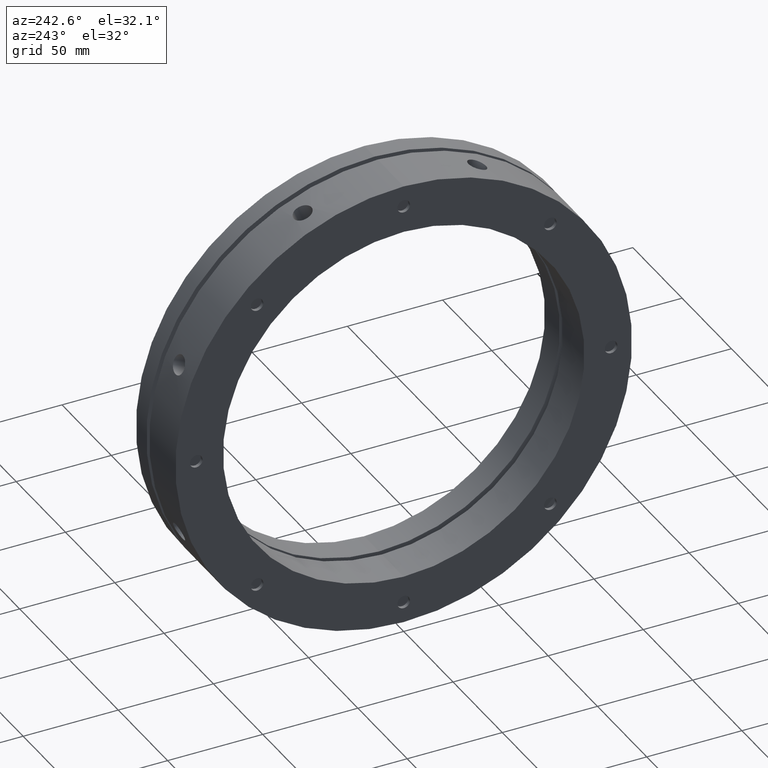
[diagram: clean part render]
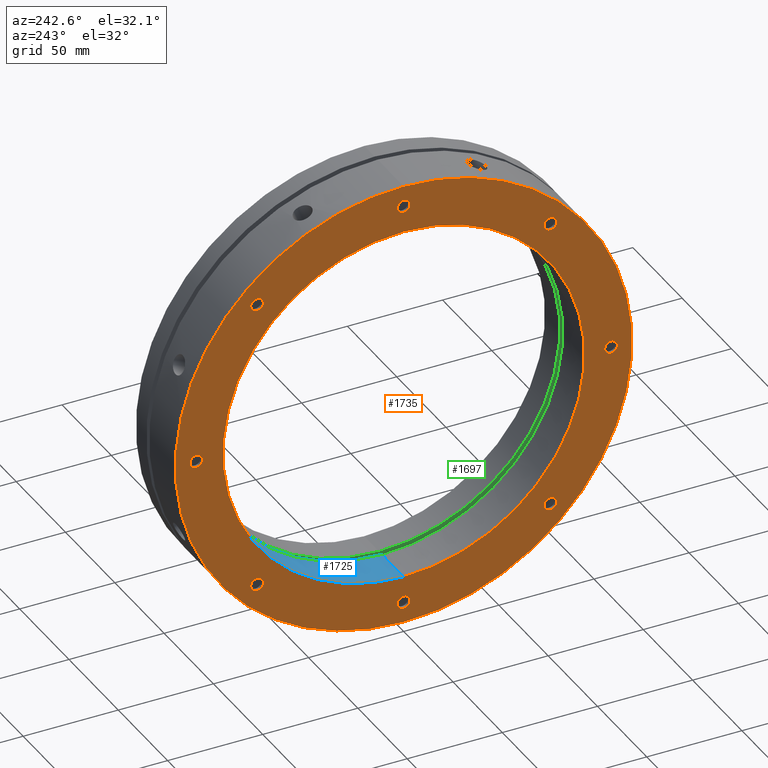
[diagram: same view with three faces highlighted in distinct colors, each labeled with its STEP entity id]
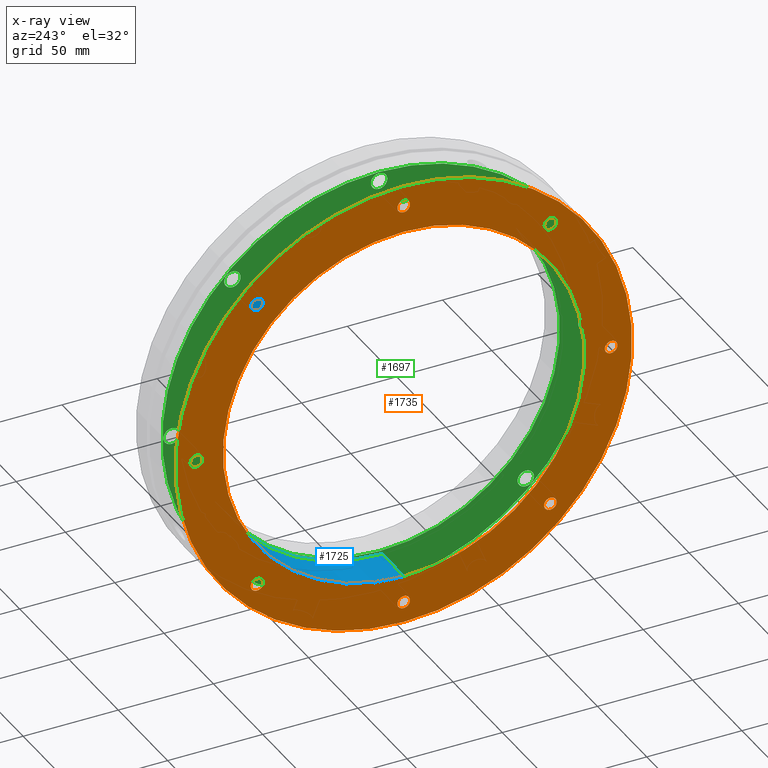
[diagram: x-ray of the same camera — body ghosted, the three highlighted faces saturated]
A machine part, auxiliary view with three faces highlighted in distinct colors.
The next image is the same camera in x-ray (body ghosted, the three faces saturated) — at least one of them is partly hidden behind the body in this view.
Their STEP definitions:

[orange] entity #1735 — the highlighted planar face has unit normal (-1, 0, 0).
#10 = DIRECTION ( 'NONE',  ( 0.0000000000000000000, 0.0000000000000000000, 1.000000000000000000 ) ) ;
#114 = EDGE_CURVE ( 'NONE', #2241, #2243, #3080, .T. ) ;
#151 = EDGE_CURVE ( 'NONE', #2280, #2273, #3122, .T. ) ;
#157 = EDGE_CURVE ( 'NONE', #2285, #2286, #3130, .T. ) ;
#161 = EDGE_CURVE ( 'NONE', #2289, #2290, #3136, .T. ) ;
#163 = EDGE_CURVE ( 'NONE', #2293, #2294, #3141, .T. ) ;
#174 = EDGE_CURVE ( 'NONE', #2301, #2302, #3159, .T. ) ;
#179 = EDGE_CURVE ( 'NONE', #2290, #2289, #3164, .T. ) ;
#187 = EDGE_CURVE ( 'NONE', #2298, #2297, #3617, .T. ) ;
#190 = EDGE_CURVE ( 'NONE', #2302, #2301, #3621, .T. ) ;
#191 = EDGE_CURVE ( 'NONE', #2273, #2280, #3623, .T. ) ;
#192 = EDGE_CURVE ( 'NONE', #2294, #2293, #3624, .T. ) ;
#196 = EDGE_CURVE ( 'NONE', #2243, #2241, #3626, .T. ) ;
#200 = EDGE_CURVE ( 'NONE', #2306, #2305, #3633, .T. ) ;
#201 = EDGE_CURVE ( 'NONE', #2314, #2313, #3630, .T. ) ;
#202 = EDGE_CURVE ( 'NONE', #2286, #2285, #3635, .T. ) ;
#208 = EDGE_CURVE ( 'NONE', #2305, #2306, #3645, .T. ) ;
#210 = EDGE_CURVE ( 'NONE', #2309, #2310, #3647, .T. ) ;
#217 = EDGE_CURVE ( 'NONE', #2313, #2314, #3655, .T. ) ;
#219 = EDGE_CURVE ( 'NONE', #2310, #2309, #3660, .T. ) ;
#234 = EDGE_CURVE ( 'NONE', #2297, #2298, #3682, .T. ) ;
#239 = DIRECTION ( 'NONE',  ( 1.000000000000000000, -0.0000000000000000000, -0.0000000000000000000 ) ) ;
#968 = CARTESIAN_POINT ( 'NONE',  ( -3.469446951953614200E-014, 0.0000000000000000000, 0.0000000000000000000 ) ) ;
#969 = DIRECTION ( 'NONE',  ( 1.000000000000000000, 0.0000000000000000000, 0.0000000000000000000 ) ) ;
#970 = DIRECTION ( 'NONE',  ( 0.0000000000000000000, 0.0000000000000000000, -1.000000000000000000 ) ) ;
#1375 = CARTESIAN_POINT ( 'NONE',  ( -2.775557561562891400E-014, 0.0000000000000000000, 0.0000000000000000000 ) ) ;
#1376 = DIRECTION ( 'NONE',  ( 1.000000000000000000, 0.0000000000000000000, 0.0000000000000000000 ) ) ;
#1377 = DIRECTION ( 'NONE',  ( 0.0000000000000000000, 0.0000000000000000000, -1.000000000000000000 ) ) ;
#1390 = CARTESIAN_POINT ( 'NONE',  ( -3.122502256758252800E-014, 0.0000000000000000000, 109.0000000000000000 ) ) ;
#1391 = DIRECTION ( 'NONE',  ( 1.000000000000000000, -0.0000000000000000000, -0.0000000000000000000 ) ) ;
#1392 = DIRECTION ( 'NONE',  ( 0.0000000000000000000, 0.0000000000000000000, 1.000000000000000000 ) ) ;
#1399 = CARTESIAN_POINT ( 'NONE',  ( -3.122502256758252800E-014, -77.07463914933369200, 77.07463914933369200 ) ) ;
#1400 = DIRECTION ( 'NONE',  ( 1.000000000000000000, -0.0000000000000000000, -0.0000000000000000000 ) ) ;
#1401 = DIRECTION ( 'NONE',  ( 0.0000000000000000000, 0.0000000000000000000, 1.000000000000000000 ) ) ;
#1404 = CARTESIAN_POINT ( 'NONE',  ( -3.122502256758252800E-014, -109.0000000000000000, 0.0000000000000000000 ) ) ;
#1405 = DIRECTION ( 'NONE',  ( 1.000000000000000000, -0.0000000000000000000, -0.0000000000000000000 ) ) ;
#1406 = DIRECTION ( 'NONE',  ( 0.0000000000000000000, 0.0000000000000000000, 1.000000000000000000 ) ) ;
#1430 = CARTESIAN_POINT ( 'NONE',  ( -3.122502256758252800E-014, -1.776356999999999900E-014, -109.0000000000000000 ) ) ;
#1431 = DIRECTION ( 'NONE',  ( 1.000000000000000000, -0.0000000000000000000, -0.0000000000000000000 ) ) ;
#1432 = DIRECTION ( 'NONE',  ( 0.0000000000000000000, 0.0000000000000000000, 1.000000000000000000 ) ) ;
#1435 = CARTESIAN_POINT ( 'NONE',  ( -3.122502256758252800E-014, -77.07463914933369200, 77.07463914933369200 ) ) ;
#1436 = DIRECTION ( 'NONE',  ( 1.000000000000000000, -0.0000000000000000000, -0.0000000000000000000 ) ) ;
#1437 = DIRECTION ( 'NONE',  ( 0.0000000000000000000, 0.0000000000000000000, 1.000000000000000000 ) ) ;
#1493 = CARTESIAN_POINT ( 'NONE',  ( -3.122502256758252800E-014, -77.07463914933369200, -77.07463914933369200 ) ) ;
#1494 = DIRECTION ( 'NONE',  ( 1.000000000000000000, -0.0000000000000000000, -0.0000000000000000000 ) ) ;
#1495 = DIRECTION ( 'NONE',  ( 0.0000000000000000000, 0.0000000000000000000, 1.000000000000000000 ) ) ;
#1497 = CARTESIAN_POINT ( 'NONE',  ( -3.122502256758252800E-014, -1.776356999999999900E-014, -109.0000000000000000 ) ) ;
#1498 = DIRECTION ( 'NONE',  ( 1.000000000000000000, -0.0000000000000000000, -0.0000000000000000000 ) ) ;
#1499 = DIRECTION ( 'NONE',  ( 0.0000000000000000000, 0.0000000000000000000, 1.000000000000000000 ) ) ;
#1501 = CARTESIAN_POINT ( 'NONE',  ( -2.775557561562891400E-014, 0.0000000000000000000, 0.0000000000000000000 ) ) ;
#1502 = DIRECTION ( 'NONE',  ( 1.000000000000000000, 0.0000000000000000000, 0.0000000000000000000 ) ) ;
#1503 = DIRECTION ( 'NONE',  ( 0.0000000000000000000, 0.0000000000000000000, -1.000000000000000000 ) ) ;
#1505 = CARTESIAN_POINT ( 'NONE',  ( -3.122502256758252800E-014, -109.0000000000000000, 0.0000000000000000000 ) ) ;
#1506 = DIRECTION ( 'NONE',  ( 1.000000000000000000, -0.0000000000000000000, -0.0000000000000000000 ) ) ;
#1507 = DIRECTION ( 'NONE',  ( 0.0000000000000000000, 0.0000000000000000000, 1.000000000000000000 ) ) ;
#1551 = CARTESIAN_POINT ( 'NONE',  ( -3.469446951953614200E-014, 0.0000000000000000000, 0.0000000000000000000 ) ) ;
#1552 = DIRECTION ( 'NONE',  ( 1.000000000000000000, 0.0000000000000000000, 0.0000000000000000000 ) ) ;
#1553 = DIRECTION ( 'NONE',  ( 0.0000000000000000000, 0.0000000000000000000, -1.000000000000000000 ) ) ;
#1560 = CARTESIAN_POINT ( 'NONE',  ( -3.122502256758252800E-014, 77.07463914933369200, -77.07463914933369200 ) ) ;
#1561 = DIRECTION ( 'NONE',  ( 1.000000000000000000, -0.0000000000000000000, -0.0000000000000000000 ) ) ;
#1562 = DIRECTION ( 'NONE',  ( 0.0000000000000000000, 0.0000000000000000000, 1.000000000000000000 ) ) ;
#1564 = CARTESIAN_POINT ( 'NONE',  ( -3.122502256758252800E-014, 77.07463914933370600, 77.07463914933367700 ) ) ;
#1565 = DIRECTION ( 'NONE',  ( 1.000000000000000000, -0.0000000000000000000, -0.0000000000000000000 ) ) ;
#1566 = DIRECTION ( 'NONE',  ( 0.0000000000000000000, 0.0000000000000000000, 1.000000000000000000 ) ) ;
#1568 = CARTESIAN_POINT ( 'NONE',  ( -3.122502256758252800E-014, 0.0000000000000000000, 109.0000000000000000 ) ) ;
#1569 = DIRECTION ( 'NONE',  ( 1.000000000000000000, -0.0000000000000000000, -0.0000000000000000000 ) ) ;
#1570 = DIRECTION ( 'NONE',  ( 0.0000000000000000000, 0.0000000000000000000, 1.000000000000000000 ) ) ;
#1582 = CARTESIAN_POINT ( 'NONE',  ( -3.122502256758252800E-014, 77.07463914933369200, -77.07463914933369200 ) ) ;
#1735 = ADVANCED_FACE ( 'NONE', ( #4041, #4049, #4045, #4043, #4047, #4050, #4051, #4052, #4053, #4054 ), #4802, .T. ) ;
#2241 = VERTEX_POINT ( 'NONE', #4855 ) ;
#2243 = VERTEX_POINT ( 'NONE', #4863 ) ;
#2273 = VERTEX_POINT ( 'NONE', #4893 ) ;
#2280 = VERTEX_POINT ( 'NONE', #4900 ) ;
#2285 = VERTEX_POINT ( 'NONE', #4905 ) ;
#2286 = VERTEX_POINT ( 'NONE', #4906 ) ;
#2289 = VERTEX_POINT ( 'NONE', #4909 ) ;
#2290 = VERTEX_POINT ( 'NONE', #4910 ) ;
#2293 = VERTEX_POINT ( 'NONE', #4913 ) ;
#2294 = VERTEX_POINT ( 'NONE', #4914 ) ;
#2297 = VERTEX_POINT ( 'NONE', #4917 ) ;
#2298 = VERTEX_POINT ( 'NONE', #4918 ) ;
#2301 = VERTEX_POINT ( 'NONE', #4921 ) ;
#2302 = VERTEX_POINT ( 'NONE', #4922 ) ;
#2305 = VERTEX_POINT ( 'NONE', #4925 ) ;
#2306 = VERTEX_POINT ( 'NONE', #4926 ) ;
#2309 = VERTEX_POINT ( 'NONE', #4929 ) ;
#2310 = VERTEX_POINT ( 'NONE', #4930 ) ;
#2313 = VERTEX_POINT ( 'NONE', #4933 ) ;
#2314 = VERTEX_POINT ( 'NONE', #4934 ) ;
#2519 = AXIS2_PLACEMENT_3D ( 'NONE', #4803, #4800, #4805 ) ;
#2793 = EDGE_LOOP ( 'NONE', ( #2927, #2926 ) ) ;
#2795 = EDGE_LOOP ( 'NONE', ( #2925, #2931 ) ) ;
#2796 = EDGE_LOOP ( 'NONE', ( #2922, #2924 ) ) ;
#2797 = EDGE_LOOP ( 'NONE', ( #2921, #2920 ) ) ;
#2801 = EDGE_LOOP ( 'NONE', ( #2919, #2923 ) ) ;
#2802 = EDGE_LOOP ( 'NONE', ( #2932, #2827 ) ) ;
#2803 = EDGE_LOOP ( 'NONE', ( #2828, #2829 ) ) ;
#2804 = EDGE_LOOP ( 'NONE', ( #2830, #2831 ) ) ;
#2805 = EDGE_LOOP ( 'NONE', ( #2832, #2833 ) ) ;
#2806 = EDGE_LOOP ( 'NONE', ( #2834, #2835 ) ) ;
#2827 = ORIENTED_EDGE ( 'NONE', *, *, #190, .T. ) ;
#2828 = ORIENTED_EDGE ( 'NONE', *, *, #208, .T. ) ;
#2829 = ORIENTED_EDGE ( 'NONE', *, *, #200, .T. ) ;
#2830 = ORIENTED_EDGE ( 'NONE', *, *, #210, .T. ) ;
#2831 = ORIENTED_EDGE ( 'NONE', *, *, #219, .T. ) ;
#2832 = ORIENTED_EDGE ( 'NONE', *, *, #217, .T. ) ;
#2833 = ORIENTED_EDGE ( 'NONE', *, *, #201, .T. ) ;
#2834 = ORIENTED_EDGE ( 'NONE', *, *, #114, .F. ) ;
#2835 = ORIENTED_EDGE ( 'NONE', *, *, #196, .F. ) ;
#2919 = ORIENTED_EDGE ( 'NONE', *, *, #191, .T. ) ;
#2920 = ORIENTED_EDGE ( 'NONE', *, *, #179, .T. ) ;
#2921 = ORIENTED_EDGE ( 'NONE', *, *, #161, .T. ) ;
#2922 = ORIENTED_EDGE ( 'NONE', *, *, #157, .T. ) ;
#2923 = ORIENTED_EDGE ( 'NONE', *, *, #151, .T. ) ;
#2924 = ORIENTED_EDGE ( 'NONE', *, *, #202, .T. ) ;
#2925 = ORIENTED_EDGE ( 'NONE', *, *, #163, .T. ) ;
#2926 = ORIENTED_EDGE ( 'NONE', *, *, #187, .T. ) ;
#2927 = ORIENTED_EDGE ( 'NONE', *, *, #234, .T. ) ;
#2931 = ORIENTED_EDGE ( 'NONE', *, *, #192, .T. ) ;
#2932 = ORIENTED_EDGE ( 'NONE', *, *, #174, .T. ) ;
#3080 = CIRCLE ( 'NONE', #3354, 120.0000000000000000 ) ;
#3122 = CIRCLE ( 'NONE', #3344, 95.00000000000000000 ) ;
#3130 = CIRCLE ( 'NONE', #3341, 3.323499999999993000 ) ;
#3136 = CIRCLE ( 'NONE', #3339, 3.323499999999993000 ) ;
#3141 = CIRCLE ( 'NONE', #3338, 3.323500000000000100 ) ;
#3159 = CIRCLE ( 'NONE', #3335, 3.323499999999993000 ) ;
#3164 = CIRCLE ( 'NONE', #3334, 3.323499999999993000 ) ;
#3307 = AXIS2_PLACEMENT_3D ( 'NONE', #4321, #4322, #4323 ) ;
#3310 = AXIS2_PLACEMENT_3D ( 'NONE', #4216, #4217, #4218 ) ;
#3312 = AXIS2_PLACEMENT_3D ( 'NONE', #4208, #4209, #4210 ) ;
#3316 = AXIS2_PLACEMENT_3D ( 'NONE', #4195, #4196, #4197 ) ;
#3318 = AXIS2_PLACEMENT_3D ( 'NONE', #1582, #239, #10 ) ;
#3321 = AXIS2_PLACEMENT_3D ( 'NONE', #1568, #1569, #1570 ) ;
#3322 = AXIS2_PLACEMENT_3D ( 'NONE', #1564, #1565, #1566 ) ;
#3323 = AXIS2_PLACEMENT_3D ( 'NONE', #1560, #1561, #1562 ) ;
#3325 = AXIS2_PLACEMENT_3D ( 'NONE', #1551, #1552, #1553 ) ;
#3327 = AXIS2_PLACEMENT_3D ( 'NONE', #1505, #1506, #1507 ) ;
#3328 = AXIS2_PLACEMENT_3D ( 'NONE', #1501, #1502, #1503 ) ;
#3329 = AXIS2_PLACEMENT_3D ( 'NONE', #1497, #1498, #1499 ) ;
#3330 = AXIS2_PLACEMENT_3D ( 'NONE', #1493, #1494, #1495 ) ;
#3334 = AXIS2_PLACEMENT_3D ( 'NONE', #1435, #1436, #1437 ) ;
#3335 = AXIS2_PLACEMENT_3D ( 'NONE', #1430, #1431, #1432 ) ;
#3338 = AXIS2_PLACEMENT_3D ( 'NONE', #1404, #1405, #1406 ) ;
#3339 = AXIS2_PLACEMENT_3D ( 'NONE', #1399, #1400, #1401 ) ;
#3341 = AXIS2_PLACEMENT_3D ( 'NONE', #1390, #1391, #1392 ) ;
#3344 = AXIS2_PLACEMENT_3D ( 'NONE', #1375, #1376, #1377 ) ;
#3354 = AXIS2_PLACEMENT_3D ( 'NONE', #968, #969, #970 ) ;
#3617 = CIRCLE ( 'NONE', #3330, 3.323500000000007200 ) ;
#3621 = CIRCLE ( 'NONE', #3329, 3.323499999999993000 ) ;
#3623 = CIRCLE ( 'NONE', #3328, 95.00000000000000000 ) ;
#3624 = CIRCLE ( 'NONE', #3327, 3.323500000000000100 ) ;
#3626 = CIRCLE ( 'NONE', #3325, 120.0000000000000000 ) ;
#3630 = CIRCLE ( 'NONE', #3322, 3.323499999999993000 ) ;
#3633 = CIRCLE ( 'NONE', #3323, 3.323499999999993000 ) ;
#3635 = CIRCLE ( 'NONE', #3321, 3.323499999999993000 ) ;
#3645 = CIRCLE ( 'NONE', #3318, 3.323499999999993000 ) ;
#3647 = CIRCLE ( 'NONE', #3316, 3.323500000000000100 ) ;
#3655 = CIRCLE ( 'NONE', #3312, 3.323499999999993000 ) ;
#3660 = CIRCLE ( 'NONE', #3310, 3.323500000000000100 ) ;
#3682 = CIRCLE ( 'NONE', #3307, 3.323500000000007200 ) ;
#4041 = FACE_BOUND ( 'NONE', #2801, .T. ) ;
#4043 = FACE_BOUND ( 'NONE', #2795, .T. ) ;
#4045 = FACE_BOUND ( 'NONE', #2797, .T. ) ;
#4047 = FACE_BOUND ( 'NONE', #2793, .T. ) ;
#4049 = FACE_BOUND ( 'NONE', #2796, .T. ) ;
#4050 = FACE_BOUND ( 'NONE', #2802, .T. ) ;
#4051 = FACE_BOUND ( 'NONE', #2803, .T. ) ;
#4052 = FACE_BOUND ( 'NONE', #2804, .T. ) ;
#4053 = FACE_BOUND ( 'NONE', #2805, .T. ) ;
#4054 = FACE_OUTER_BOUND ( 'NONE', #2806, .T. ) ;
#4195 = CARTESIAN_POINT ( 'NONE',  ( -3.122502256758252800E-014, 109.0000000000000000, -1.776356999999999900E-014 ) ) ;
#4196 = DIRECTION ( 'NONE',  ( 1.000000000000000000, -0.0000000000000000000, -0.0000000000000000000 ) ) ;
#4197 = DIRECTION ( 'NONE',  ( 0.0000000000000000000, 0.0000000000000000000, 1.000000000000000000 ) ) ;
#4208 = CARTESIAN_POINT ( 'NONE',  ( -3.122502256758252800E-014, 77.07463914933370600, 77.07463914933367700 ) ) ;
#4209 = DIRECTION ( 'NONE',  ( 1.000000000000000000, -0.0000000000000000000, -0.0000000000000000000 ) ) ;
#4210 = DIRECTION ( 'NONE',  ( 0.0000000000000000000, 0.0000000000000000000, 1.000000000000000000 ) ) ;
#4216 = CARTESIAN_POINT ( 'NONE',  ( -3.122502256758252800E-014, 109.0000000000000000, -1.776356999999999900E-014 ) ) ;
#4217 = DIRECTION ( 'NONE',  ( 1.000000000000000000, -0.0000000000000000000, -0.0000000000000000000 ) ) ;
#4218 = DIRECTION ( 'NONE',  ( 0.0000000000000000000, 0.0000000000000000000, 1.000000000000000000 ) ) ;
#4321 = CARTESIAN_POINT ( 'NONE',  ( -3.122502256758252800E-014, -77.07463914933369200, -77.07463914933369200 ) ) ;
#4322 = DIRECTION ( 'NONE',  ( 1.000000000000000000, -0.0000000000000000000, -0.0000000000000000000 ) ) ;
#4323 = DIRECTION ( 'NONE',  ( 0.0000000000000000000, 0.0000000000000000000, 1.000000000000000000 ) ) ;
#4800 = DIRECTION ( 'NONE',  ( -1.000000000000000000, 0.0000000000000000000, 0.0000000000000000000 ) ) ;
#4802 = PLANE ( 'NONE',  #2519 ) ;
#4803 = CARTESIAN_POINT ( 'NONE',  ( -3.185942000000000000E-014, 107.5000000000000000, 0.0000000000000000000 ) ) ;
#4805 = DIRECTION ( 'NONE',  ( 0.0000000000000000000, 0.0000000000000000000, 1.000000000000000000 ) ) ;
#4855 = CARTESIAN_POINT ( 'NONE',  ( -3.469446951953614200E-014, 0.0000000000000000000, -120.0000000000000000 ) ) ;
#4863 = CARTESIAN_POINT ( 'NONE',  ( -3.469446951953614200E-014, 1.469576158976823700E-014, 120.0000000000000000 ) ) ;
#4893 = CARTESIAN_POINT ( 'NONE',  ( -2.775557561562891400E-014, 0.0000000000000000000, -95.00000000000000000 ) ) ;
#4900 = CARTESIAN_POINT ( 'NONE',  ( -2.775557561562891400E-014, 1.163414459189985600E-014, 95.00000000000000000 ) ) ;
#4905 = CARTESIAN_POINT ( 'NONE',  ( -3.122502256758252800E-014, 0.0000000000000000000, 112.3235000000000000 ) ) ;
#4906 = CARTESIAN_POINT ( 'NONE',  ( -3.122502256758252800E-014, 4.070113636966236800E-016, 105.6765000000000000 ) ) ;
#4909 = CARTESIAN_POINT ( 'NONE',  ( -3.122502256758252800E-014, -77.07463914933369200, 80.39813914933368700 ) ) ;
#4910 = CARTESIAN_POINT ( 'NONE',  ( -3.122502256758252800E-014, -77.07463914933369200, 73.75113914933371000 ) ) ;
#4913 = CARTESIAN_POINT ( 'NONE',  ( -3.122502256758252800E-014, -109.0000000000000000, 3.323500000000000100 ) ) ;
#4914 = CARTESIAN_POINT ( 'NONE',  ( -3.122502256758252800E-014, -109.0000000000000000, -3.323500000000000100 ) ) ;
#4917 = CARTESIAN_POINT ( 'NONE',  ( -3.122502256758252800E-014, -77.07463914933369200, -73.75113914933368200 ) ) ;
#4918 = CARTESIAN_POINT ( 'NONE',  ( -3.122502256758252800E-014, -77.07463914933369200, -80.39813914933368700 ) ) ;
#4921 = CARTESIAN_POINT ( 'NONE',  ( -3.122502256758252800E-014, -1.776356999999999900E-014, -105.6765000000000000 ) ) ;
#4922 = CARTESIAN_POINT ( 'NONE',  ( -3.122502256758252800E-014, -1.735655863630337500E-014, -112.3235000000000000 ) ) ;
#4925 = CARTESIAN_POINT ( 'NONE',  ( -3.122502256758252800E-014, 77.07463914933369200, -73.75113914933371000 ) ) ;
#4926 = CARTESIAN_POINT ( 'NONE',  ( -3.122502256758252800E-014, 77.07463914933369200, -80.39813914933368700 ) ) ;
#4929 = CARTESIAN_POINT ( 'NONE',  ( -3.122502256758252800E-014, 109.0000000000000000, 3.323499999999982400 ) ) ;
#4930 = CARTESIAN_POINT ( 'NONE',  ( -3.122502256758252800E-014, 109.0000000000000000, -3.323500000000017900 ) ) ;
#4933 = CARTESIAN_POINT ( 'NONE',  ( -3.122502256758252800E-014, 77.07463914933370600, 80.39813914933365900 ) ) ;
#4934 = CARTESIAN_POINT ( 'NONE',  ( -3.122502256758252800E-014, 77.07463914933370600, 73.75113914933368200 ) ) ;

[blue] entity #1725 — the highlighted cylindrical surface (partial cylindrical patch) has radius 95 mm, axis along (1, 0, 0).
#12 = EDGE_CURVE ( 'NONE', #2282, #2281, #2933, .T. ) ;
#152 = EDGE_CURVE ( 'NONE', #2280, #2282, #3124, .T. ) ;
#154 = EDGE_CURVE ( 'NONE', #2273, #2281, #3129, .T. ) ;
#191 = EDGE_CURVE ( 'NONE', #2273, #2280, #3623, .T. ) ;
#599 = CARTESIAN_POINT ( 'NONE',  ( 21.99999999999996400, 0.0000000000000000000, 0.0000000000000000000 ) ) ;
#600 = DIRECTION ( 'NONE',  ( -1.000000000000000000, -0.0000000000000000000, -0.0000000000000000000 ) ) ;
#601 = DIRECTION ( 'NONE',  ( 0.0000000000000000000, 0.0000000000000000000, -1.000000000000000000 ) ) ;
#1372 = DIRECTION ( 'NONE',  ( 1.000000000000000000, 0.0000000000000000000, 0.0000000000000000000 ) ) ;
#1373 = DIRECTION ( 'NONE',  ( 1.000000000000000000, 0.0000000000000000000, 0.0000000000000000000 ) ) ;
#1374 = CARTESIAN_POINT ( 'NONE',  ( 19.99999999999997500, 1.163414459189985600E-014, 95.00000000000000000 ) ) ;
#1378 = CARTESIAN_POINT ( 'NONE',  ( 19.99999999999997500, 0.0000000000000000000, -95.00000000000000000 ) ) ;
#1501 = CARTESIAN_POINT ( 'NONE',  ( -2.775557561562891400E-014, 0.0000000000000000000, 0.0000000000000000000 ) ) ;
#1502 = DIRECTION ( 'NONE',  ( 1.000000000000000000, 0.0000000000000000000, 0.0000000000000000000 ) ) ;
#1503 = DIRECTION ( 'NONE',  ( 0.0000000000000000000, 0.0000000000000000000, -1.000000000000000000 ) ) ;
#1725 = ADVANCED_FACE ( 'NONE', ( #4013 ), #4022, .F. ) ;
#2189 = ORIENTED_EDGE ( 'NONE', *, *, #152, .F. ) ;
#2190 = ORIENTED_EDGE ( 'NONE', *, *, #191, .F. ) ;
#2191 = ORIENTED_EDGE ( 'NONE', *, *, #154, .T. ) ;
#2192 = ORIENTED_EDGE ( 'NONE', *, *, #12, .F. ) ;
#2273 = VERTEX_POINT ( 'NONE', #4893 ) ;
#2280 = VERTEX_POINT ( 'NONE', #4900 ) ;
#2281 = VERTEX_POINT ( 'NONE', #4901 ) ;
#2282 = VERTEX_POINT ( 'NONE', #4902 ) ;
#2405 = AXIS2_PLACEMENT_3D ( 'NONE', #4773, #4771, #4769 ) ;
#2782 = EDGE_LOOP ( 'NONE', ( #2189, #2190, #2191, #2192 ) ) ;
#2933 = CIRCLE ( 'NONE', #3410, 95.00000000000000000 ) ;
#3124 = LINE ( 'NONE', #1374, #3128 ) ;
#3128 = VECTOR ( 'NONE', #1372, 1000.000000000000000 ) ;
#3129 = LINE ( 'NONE', #1378, #3131 ) ;
#3131 = VECTOR ( 'NONE', #1373, 1000.000000000000000 ) ;
#3328 = AXIS2_PLACEMENT_3D ( 'NONE', #1501, #1502, #1503 ) ;
#3410 = AXIS2_PLACEMENT_3D ( 'NONE', #599, #600, #601 ) ;
#3623 = CIRCLE ( 'NONE', #3328, 95.00000000000000000 ) ;
#4013 = FACE_OUTER_BOUND ( 'NONE', #2782, .T. ) ;
#4022 = CYLINDRICAL_SURFACE ( 'NONE', #2405, 95.00000000000000000 ) ;
#4769 = DIRECTION ( 'NONE',  ( 0.0000000000000000000, 0.0000000000000000000, -1.000000000000000000 ) ) ;
#4771 = DIRECTION ( 'NONE',  ( 1.000000000000000000, 0.0000000000000000000, 0.0000000000000000000 ) ) ;
#4773 = CARTESIAN_POINT ( 'NONE',  ( 19.99999999999997500, 0.0000000000000000000, 0.0000000000000000000 ) ) ;
#4893 = CARTESIAN_POINT ( 'NONE',  ( -2.775557561562891400E-014, 0.0000000000000000000, -95.00000000000000000 ) ) ;
#4900 = CARTESIAN_POINT ( 'NONE',  ( -2.775557561562891400E-014, 1.163414459189985600E-014, 95.00000000000000000 ) ) ;
#4901 = CARTESIAN_POINT ( 'NONE',  ( 21.99999999999996400, 0.0000000000000000000, -95.00000000000000000 ) ) ;
#4902 = CARTESIAN_POINT ( 'NONE',  ( 21.99999999999996400, 1.163414459189985600E-014, 95.00000000000000000 ) ) ;

[green] entity #1697 — the highlighted planar face has unit normal (1, 0, 0).
#68 = EDGE_CURVE ( 'NONE', #2591, #2592, #3008, .T. ) ;
#72 = EDGE_CURVE ( 'NONE', #2595, #2596, #3014, .T. ) ;
#76 = EDGE_CURVE ( 'NONE', #2599, #2600, #3020, .T. ) ;
#80 = EDGE_CURVE ( 'NONE', #2603, #2604, #3026, .T. ) ;
#84 = EDGE_CURVE ( 'NONE', #2607, #2608, #3032, .T. ) ;
#93 = EDGE_CURVE ( 'NONE', #2328, #2329, #3046, .T. ) ;
#94 = EDGE_CURVE ( 'NONE', #2316, #2325, #3041, .T. ) ;
#393 = EDGE_LOOP ( 'NONE', ( #2041, #2042 ) ) ;
#409 = EDGE_LOOP ( 'NONE', ( #2037, #2038 ) ) ;
#410 = EDGE_LOOP ( 'NONE', ( #2045, #2046 ) ) ;
#420 = EDGE_LOOP ( 'NONE', ( #2039, #2040 ) ) ;
#421 = EDGE_LOOP ( 'NONE', ( #2043, #2044 ) ) ;
#422 = EDGE_LOOP ( 'NONE', ( #2047, #2048 ) ) ;
#423 = EDGE_LOOP ( 'NONE', ( #2051, #2052 ) ) ;
#751 = CARTESIAN_POINT ( 'NONE',  ( 24.99999999999997500, -1.776356999999999900E-014, -109.0000000000000000 ) ) ;
#752 = DIRECTION ( 'NONE',  ( 1.000000000000000000, 0.0000000000000000000, 0.0000000000000000000 ) ) ;
#753 = DIRECTION ( 'NONE',  ( 0.0000000000000000000, 0.0000000000000000000, -1.000000000000000000 ) ) ;
#761 = CARTESIAN_POINT ( 'NONE',  ( 24.99999999999997500, 77.07463914933369200, -77.07463914933369200 ) ) ;
#762 = DIRECTION ( 'NONE',  ( 1.000000000000000000, 0.0000000000000000000, 0.0000000000000000000 ) ) ;
#763 = DIRECTION ( 'NONE',  ( 0.0000000000000000000, 0.0000000000000000000, -1.000000000000000000 ) ) ;
#771 = CARTESIAN_POINT ( 'NONE',  ( 24.99999999999997500, 109.0000000000000000, -1.776356999999999900E-014 ) ) ;
#772 = DIRECTION ( 'NONE',  ( 1.000000000000000000, 0.0000000000000000000, 0.0000000000000000000 ) ) ;
#773 = DIRECTION ( 'NONE',  ( 0.0000000000000000000, 0.0000000000000000000, -1.000000000000000000 ) ) ;
#781 = CARTESIAN_POINT ( 'NONE',  ( 24.99999999999997500, 77.07463914933370600, 77.07463914933367700 ) ) ;
#782 = DIRECTION ( 'NONE',  ( 1.000000000000000000, 0.0000000000000000000, 0.0000000000000000000 ) ) ;
#783 = DIRECTION ( 'NONE',  ( 0.0000000000000000000, 0.0000000000000000000, -1.000000000000000000 ) ) ;
#792 = CARTESIAN_POINT ( 'NONE',  ( 24.99999999999995700, 0.0000000000000000000, 0.0000000000000000000 ) ) ;
#793 = DIRECTION ( 'NONE',  ( 1.000000000000000000, -0.0000000000000000000, -0.0000000000000000000 ) ) ;
#794 = DIRECTION ( 'NONE',  ( 0.0000000000000000000, 0.0000000000000000000, 1.000000000000000000 ) ) ;
#811 = CARTESIAN_POINT ( 'NONE',  ( 24.99999999999997500, -77.07463914933369200, 77.07463914933369200 ) ) ;
#812 = DIRECTION ( 'NONE',  ( 1.000000000000000000, 0.0000000000000000000, 0.0000000000000000000 ) ) ;
#813 = DIRECTION ( 'NONE',  ( 0.0000000000000000000, 0.0000000000000000000, -1.000000000000000000 ) ) ;
#815 = CARTESIAN_POINT ( 'NONE',  ( 24.99999999999997500, 0.0000000000000000000, 109.0000000000000000 ) ) ;
#816 = DIRECTION ( 'NONE',  ( 1.000000000000000000, 0.0000000000000000000, 0.0000000000000000000 ) ) ;
#817 = DIRECTION ( 'NONE',  ( 0.0000000000000000000, 0.0000000000000000000, -1.000000000000000000 ) ) ;
#1697 = ADVANCED_FACE ( 'NONE', ( #3933, #3941, #3937, #3935, #3939, #3942, #3943, #3944, #3945, #3946 ), #4684, .F. ) ;
#2037 = ORIENTED_EDGE ( 'NONE', *, *, #3402, .F. ) ;
#2038 = ORIENTED_EDGE ( 'NONE', *, *, #3537, .F. ) ;
#2039 = ORIENTED_EDGE ( 'NONE', *, *, #3557, .T. ) ;
#2040 = ORIENTED_EDGE ( 'NONE', *, *, #94, .T. ) ;
#2041 = ORIENTED_EDGE ( 'NONE', *, *, #3558, .T. ) ;
#2042 = ORIENTED_EDGE ( 'NONE', *, *, #93, .T. ) ;
#2043 = ORIENTED_EDGE ( 'NONE', *, *, #3559, .T. ) ;
#2044 = ORIENTED_EDGE ( 'NONE', *, *, #3508, .T. ) ;
#2045 = ORIENTED_EDGE ( 'NONE', *, *, #3562, .T. ) ;
#2046 = ORIENTED_EDGE ( 'NONE', *, *, #3392, .T. ) ;
#2047 = ORIENTED_EDGE ( 'NONE', *, *, #3563, .T. ) ;
#2048 = ORIENTED_EDGE ( 'NONE', *, *, #68, .T. ) ;
#2049 = ORIENTED_EDGE ( 'NONE', *, *, #3564, .T. ) ;
#2050 = ORIENTED_EDGE ( 'NONE', *, *, #72, .T. ) ;
#2051 = ORIENTED_EDGE ( 'NONE', *, *, #3565, .T. ) ;
#2052 = ORIENTED_EDGE ( 'NONE', *, *, #76, .T. ) ;
#2053 = ORIENTED_EDGE ( 'NONE', *, *, #3566, .T. ) ;
#2054 = ORIENTED_EDGE ( 'NONE', *, *, #80, .T. ) ;
#2055 = ORIENTED_EDGE ( 'NONE', *, *, #84, .F. ) ;
#2056 = ORIENTED_EDGE ( 'NONE', *, *, #3555, .F. ) ;
#2316 = VERTEX_POINT ( 'NONE', #4936 ) ;
#2325 = VERTEX_POINT ( 'NONE', #4945 ) ;
#2328 = VERTEX_POINT ( 'NONE', #4948 ) ;
#2329 = VERTEX_POINT ( 'NONE', #4949 ) ;
#2332 = VERTEX_POINT ( 'NONE', #4952 ) ;
#2333 = VERTEX_POINT ( 'NONE', #4953 ) ;
#2442 = AXIS2_PLACEMENT_3D ( 'NONE', #5532, #5533, #5534 ) ;
#2443 = AXIS2_PLACEMENT_3D ( 'NONE', #5529, #5530, #5531 ) ;
#2444 = AXIS2_PLACEMENT_3D ( 'NONE', #5525, #5526, #5527 ) ;
#2445 = AXIS2_PLACEMENT_3D ( 'NONE', #5522, #5523, #5524 ) ;
#2446 = AXIS2_PLACEMENT_3D ( 'NONE', #5519, #5520, #5521 ) ;
#2448 = AXIS2_PLACEMENT_3D ( 'NONE', #5513, #5514, #5515 ) ;
#2449 = AXIS2_PLACEMENT_3D ( 'NONE', #5510, #5511, #5512 ) ;
#2450 = AXIS2_PLACEMENT_3D ( 'NONE', #5505, #5506, #5507 ) ;
#2452 = AXIS2_PLACEMENT_3D ( 'NONE', #5499, #5500, #5501 ) ;
#2466 = AXIS2_PLACEMENT_3D ( 'NONE', #5452, #5453, #5454 ) ;
#2495 = AXIS2_PLACEMENT_3D ( 'NONE', #5366, #5367, #5368 ) ;
#2539 = AXIS2_PLACEMENT_3D ( 'NONE', #5203, #5204, #5205 ) ;
#2543 = AXIS2_PLACEMENT_3D ( 'NONE', #5182, #5183, #5184 ) ;
#2587 = VERTEX_POINT ( 'NONE', #4958 ) ;
#2588 = VERTEX_POINT ( 'NONE', #4959 ) ;
#2591 = VERTEX_POINT ( 'NONE', #4955 ) ;
#2592 = VERTEX_POINT ( 'NONE', #4962 ) ;
#2595 = VERTEX_POINT ( 'NONE', #4964 ) ;
#2596 = VERTEX_POINT ( 'NONE', #4965 ) ;
#2599 = VERTEX_POINT ( 'NONE', #4968 ) ;
#2600 = VERTEX_POINT ( 'NONE', #4969 ) ;
#2603 = VERTEX_POINT ( 'NONE', #4972 ) ;
#2604 = VERTEX_POINT ( 'NONE', #4973 ) ;
#2607 = VERTEX_POINT ( 'NONE', #4976 ) ;
#2608 = VERTEX_POINT ( 'NONE', #4977 ) ;
#2647 = VERTEX_POINT ( 'NONE', #5016 ) ;
#2648 = VERTEX_POINT ( 'NONE', #5017 ) ;
#2910 = EDGE_LOOP ( 'NONE', ( #2053, #2054 ) ) ;
#2913 = EDGE_LOOP ( 'NONE', ( #2055, #2056 ) ) ;
#2914 = EDGE_LOOP ( 'NONE', ( #2049, #2050 ) ) ;
#3008 = CIRCLE ( 'NONE', #3450, 4.299999999999998000 ) ;
#3014 = CIRCLE ( 'NONE', #3314, 4.299999999999998000 ) ;
#3020 = CIRCLE ( 'NONE', #3452, 4.299999999999999800 ) ;
#3026 = CIRCLE ( 'NONE', #3448, 4.299999999999998000 ) ;
#3032 = CIRCLE ( 'NONE', #3362, 114.0000000000000000 ) ;
#3041 = CIRCLE ( 'NONE', #3357, 4.299999999999998000 ) ;
#3046 = CIRCLE ( 'NONE', #3358, 4.299999999999998000 ) ;
#3314 = AXIS2_PLACEMENT_3D ( 'NONE', #761, #762, #763 ) ;
#3357 = AXIS2_PLACEMENT_3D ( 'NONE', #815, #816, #817 ) ;
#3358 = AXIS2_PLACEMENT_3D ( 'NONE', #811, #812, #813 ) ;
#3362 = AXIS2_PLACEMENT_3D ( 'NONE', #792, #793, #794 ) ;
#3392 = EDGE_CURVE ( 'NONE', #2587, #2588, #4125, .T. ) ;
#3402 = EDGE_CURVE ( 'NONE', #2647, #2648, #4142, .T. ) ;
#3448 = AXIS2_PLACEMENT_3D ( 'NONE', #781, #782, #783 ) ;
#3450 = AXIS2_PLACEMENT_3D ( 'NONE', #751, #752, #753 ) ;
#3452 = AXIS2_PLACEMENT_3D ( 'NONE', #771, #772, #773 ) ;
#3508 = EDGE_CURVE ( 'NONE', #2332, #2333, #5730, .T. ) ;
#3537 = EDGE_CURVE ( 'NONE', #2648, #2647, #5763, .T. ) ;
#3555 = EDGE_CURVE ( 'NONE', #2608, #2607, #5785, .T. ) ;
#3557 = EDGE_CURVE ( 'NONE', #2325, #2316, #5787, .T. ) ;
#3558 = EDGE_CURVE ( 'NONE', #2329, #2328, #5788, .T. ) ;
#3559 = EDGE_CURVE ( 'NONE', #2333, #2332, #5789, .T. ) ;
#3562 = EDGE_CURVE ( 'NONE', #2588, #2587, #5793, .T. ) ;
#3563 = EDGE_CURVE ( 'NONE', #2592, #2591, #5794, .T. ) ;
#3564 = EDGE_CURVE ( 'NONE', #2596, #2595, #5795, .T. ) ;
#3565 = EDGE_CURVE ( 'NONE', #2600, #2599, #5796, .T. ) ;
#3566 = EDGE_CURVE ( 'NONE', #2604, #2603, #5797, .T. ) ;
#3587 = AXIS2_PLACEMENT_3D ( 'NONE', #4686, #4682, #4688 ) ;
#3933 = FACE_BOUND ( 'NONE', #409, .T. ) ;
#3935 = FACE_BOUND ( 'NONE', #421, .T. ) ;
#3937 = FACE_BOUND ( 'NONE', #393, .T. ) ;
#3939 = FACE_BOUND ( 'NONE', #410, .T. ) ;
#3941 = FACE_BOUND ( 'NONE', #420, .T. ) ;
#3942 = FACE_BOUND ( 'NONE', #422, .T. ) ;
#3943 = FACE_BOUND ( 'NONE', #2914, .T. ) ;
#3944 = FACE_BOUND ( 'NONE', #423, .T. ) ;
#3945 = FACE_BOUND ( 'NONE', #2910, .T. ) ;
#3946 = FACE_OUTER_BOUND ( 'NONE', #2913, .T. ) ;
#4125 = CIRCLE ( 'NONE', #2543, 4.299999999999998000 ) ;
#4142 = CIRCLE ( 'NONE', #2539, 95.00000000000000000 ) ;
#4682 = DIRECTION ( 'NONE',  ( 1.000000000000000000, -0.0000000000000000000, 0.0000000000000000000 ) ) ;
#4684 = PLANE ( 'NONE',  #3587 ) ;
#4686 = CARTESIAN_POINT ( 'NONE',  ( 24.99999999999997200, 57.00000000000000000, 0.0000000000000000000 ) ) ;
#4688 = DIRECTION ( 'NONE',  ( 0.0000000000000000000, 0.0000000000000000000, -1.000000000000000000 ) ) ;
#4936 = CARTESIAN_POINT ( 'NONE',  ( 24.99999999999997500, 5.265981236333620400E-016, 113.3000000000000000 ) ) ;
#4945 = CARTESIAN_POINT ( 'NONE',  ( 24.99999999999997500, 0.0000000000000000000, 104.7000000000000000 ) ) ;
#4948 = CARTESIAN_POINT ( 'NONE',  ( 24.99999999999997500, -77.07463914933369200, 81.37463914933370300 ) ) ;
#4949 = CARTESIAN_POINT ( 'NONE',  ( 24.99999999999997500, -77.07463914933369200, 72.77463914933369400 ) ) ;
#4952 = CARTESIAN_POINT ( 'NONE',  ( 24.99999999999997500, -109.0000000000000000, 4.299999999999999800 ) ) ;
#4953 = CARTESIAN_POINT ( 'NONE',  ( 24.99999999999997500, -109.0000000000000000, -4.299999999999999800 ) ) ;
#4955 = CARTESIAN_POINT ( 'NONE',  ( 24.99999999999997500, -1.723697187636663600E-014, -104.7000000000000000 ) ) ;
#4958 = CARTESIAN_POINT ( 'NONE',  ( 24.99999999999997500, -77.07463914933369200, -72.77463914933368000 ) ) ;
#4959 = CARTESIAN_POINT ( 'NONE',  ( 24.99999999999997500, -77.07463914933369200, -81.37463914933368900 ) ) ;
#4962 = CARTESIAN_POINT ( 'NONE',  ( 24.99999999999997500, -1.776356999999999900E-014, -113.3000000000000000 ) ) ;
#4964 = CARTESIAN_POINT ( 'NONE',  ( 24.99999999999997500, 77.07463914933369200, -72.77463914933369400 ) ) ;
#4965 = CARTESIAN_POINT ( 'NONE',  ( 24.99999999999997500, 77.07463914933369200, -81.37463914933370300 ) ) ;
#4968 = CARTESIAN_POINT ( 'NONE',  ( 24.99999999999997500, 109.0000000000000000, 4.299999999999982900 ) ) ;
#4969 = CARTESIAN_POINT ( 'NONE',  ( 24.99999999999997500, 109.0000000000000000, -4.300000000000017600 ) ) ;
#4972 = CARTESIAN_POINT ( 'NONE',  ( 24.99999999999997500, 77.07463914933370600, 81.37463914933367400 ) ) ;
#4973 = CARTESIAN_POINT ( 'NONE',  ( 24.99999999999997500, 77.07463914933370600, 72.77463914933366600 ) ) ;
#4976 = CARTESIAN_POINT ( 'NONE',  ( 24.99999999999995700, 0.0000000000000000000, 114.0000000000000000 ) ) ;
#4977 = CARTESIAN_POINT ( 'NONE',  ( 24.99999999999995700, 1.396097351027982600E-014, -114.0000000000000000 ) ) ;
#5016 = CARTESIAN_POINT ( 'NONE',  ( 24.99999999999997200, 0.0000000000000000000, -95.00000000000000000 ) ) ;
#5017 = CARTESIAN_POINT ( 'NONE',  ( 24.99999999999997200, 1.163414459189985600E-014, 95.00000000000000000 ) ) ;
#5182 = CARTESIAN_POINT ( 'NONE',  ( 24.99999999999997500, -77.07463914933369200, -77.07463914933369200 ) ) ;
#5183 = DIRECTION ( 'NONE',  ( 1.000000000000000000, 0.0000000000000000000, 0.0000000000000000000 ) ) ;
#5184 = DIRECTION ( 'NONE',  ( 0.0000000000000000000, 0.0000000000000000000, -1.000000000000000000 ) ) ;
#5203 = CARTESIAN_POINT ( 'NONE',  ( 24.99999999999997200, 0.0000000000000000000, 0.0000000000000000000 ) ) ;
#5204 = DIRECTION ( 'NONE',  ( -1.000000000000000000, -0.0000000000000000000, -0.0000000000000000000 ) ) ;
#5205 = DIRECTION ( 'NONE',  ( 0.0000000000000000000, 0.0000000000000000000, -1.000000000000000000 ) ) ;
#5366 = CARTESIAN_POINT ( 'NONE',  ( 24.99999999999997500, -109.0000000000000000, 0.0000000000000000000 ) ) ;
#5367 = DIRECTION ( 'NONE',  ( 1.000000000000000000, 0.0000000000000000000, 0.0000000000000000000 ) ) ;
#5368 = DIRECTION ( 'NONE',  ( 0.0000000000000000000, 0.0000000000000000000, -1.000000000000000000 ) ) ;
#5452 = CARTESIAN_POINT ( 'NONE',  ( 24.99999999999997200, 0.0000000000000000000, 0.0000000000000000000 ) ) ;
#5453 = DIRECTION ( 'NONE',  ( -1.000000000000000000, -0.0000000000000000000, -0.0000000000000000000 ) ) ;
#5454 = DIRECTION ( 'NONE',  ( 0.0000000000000000000, 0.0000000000000000000, -1.000000000000000000 ) ) ;
#5499 = CARTESIAN_POINT ( 'NONE',  ( 24.99999999999995700, 0.0000000000000000000, 0.0000000000000000000 ) ) ;
#5500 = DIRECTION ( 'NONE',  ( 1.000000000000000000, -0.0000000000000000000, -0.0000000000000000000 ) ) ;
#5501 = DIRECTION ( 'NONE',  ( 0.0000000000000000000, 0.0000000000000000000, 1.000000000000000000 ) ) ;
#5505 = CARTESIAN_POINT ( 'NONE',  ( 24.99999999999997500, 0.0000000000000000000, 109.0000000000000000 ) ) ;
#5506 = DIRECTION ( 'NONE',  ( 1.000000000000000000, 0.0000000000000000000, 0.0000000000000000000 ) ) ;
#5507 = DIRECTION ( 'NONE',  ( 0.0000000000000000000, 0.0000000000000000000, -1.000000000000000000 ) ) ;
#5510 = CARTESIAN_POINT ( 'NONE',  ( 24.99999999999997500, -77.07463914933369200, 77.07463914933369200 ) ) ;
#5511 = DIRECTION ( 'NONE',  ( 1.000000000000000000, 0.0000000000000000000, 0.0000000000000000000 ) ) ;
#5512 = DIRECTION ( 'NONE',  ( 0.0000000000000000000, 0.0000000000000000000, -1.000000000000000000 ) ) ;
#5513 = CARTESIAN_POINT ( 'NONE',  ( 24.99999999999997500, -109.0000000000000000, 0.0000000000000000000 ) ) ;
#5514 = DIRECTION ( 'NONE',  ( 1.000000000000000000, 0.0000000000000000000, 0.0000000000000000000 ) ) ;
#5515 = DIRECTION ( 'NONE',  ( 0.0000000000000000000, 0.0000000000000000000, -1.000000000000000000 ) ) ;
#5519 = CARTESIAN_POINT ( 'NONE',  ( 24.99999999999997500, -77.07463914933369200, -77.07463914933369200 ) ) ;
#5520 = DIRECTION ( 'NONE',  ( 1.000000000000000000, 0.0000000000000000000, 0.0000000000000000000 ) ) ;
#5521 = DIRECTION ( 'NONE',  ( 0.0000000000000000000, 0.0000000000000000000, -1.000000000000000000 ) ) ;
#5522 = CARTESIAN_POINT ( 'NONE',  ( 24.99999999999997500, -1.776356999999999900E-014, -109.0000000000000000 ) ) ;
#5523 = DIRECTION ( 'NONE',  ( 1.000000000000000000, 0.0000000000000000000, 0.0000000000000000000 ) ) ;
#5524 = DIRECTION ( 'NONE',  ( 0.0000000000000000000, 0.0000000000000000000, -1.000000000000000000 ) ) ;
#5525 = CARTESIAN_POINT ( 'NONE',  ( 24.99999999999997500, 77.07463914933369200, -77.07463914933369200 ) ) ;
#5526 = DIRECTION ( 'NONE',  ( 1.000000000000000000, 0.0000000000000000000, 0.0000000000000000000 ) ) ;
#5527 = DIRECTION ( 'NONE',  ( 0.0000000000000000000, 0.0000000000000000000, -1.000000000000000000 ) ) ;
#5529 = CARTESIAN_POINT ( 'NONE',  ( 24.99999999999997500, 109.0000000000000000, -1.776356999999999900E-014 ) ) ;
#5530 = DIRECTION ( 'NONE',  ( 1.000000000000000000, 0.0000000000000000000, 0.0000000000000000000 ) ) ;
#5531 = DIRECTION ( 'NONE',  ( 0.0000000000000000000, 0.0000000000000000000, -1.000000000000000000 ) ) ;
#5532 = CARTESIAN_POINT ( 'NONE',  ( 24.99999999999997500, 77.07463914933370600, 77.07463914933367700 ) ) ;
#5533 = DIRECTION ( 'NONE',  ( 1.000000000000000000, 0.0000000000000000000, 0.0000000000000000000 ) ) ;
#5534 = DIRECTION ( 'NONE',  ( 0.0000000000000000000, 0.0000000000000000000, -1.000000000000000000 ) ) ;
#5730 = CIRCLE ( 'NONE', #2495, 4.299999999999999800 ) ;
#5763 = CIRCLE ( 'NONE', #2466, 95.00000000000000000 ) ;
#5785 = CIRCLE ( 'NONE', #2452, 114.0000000000000000 ) ;
#5787 = CIRCLE ( 'NONE', #2450, 4.299999999999998000 ) ;
#5788 = CIRCLE ( 'NONE', #2449, 4.299999999999998000 ) ;
#5789 = CIRCLE ( 'NONE', #2448, 4.299999999999999800 ) ;
#5793 = CIRCLE ( 'NONE', #2446, 4.299999999999998000 ) ;
#5794 = CIRCLE ( 'NONE', #2445, 4.299999999999998000 ) ;
#5795 = CIRCLE ( 'NONE', #2444, 4.299999999999998000 ) ;
#5796 = CIRCLE ( 'NONE', #2443, 4.299999999999999800 ) ;
#5797 = CIRCLE ( 'NONE', #2442, 4.299999999999998000 ) ;